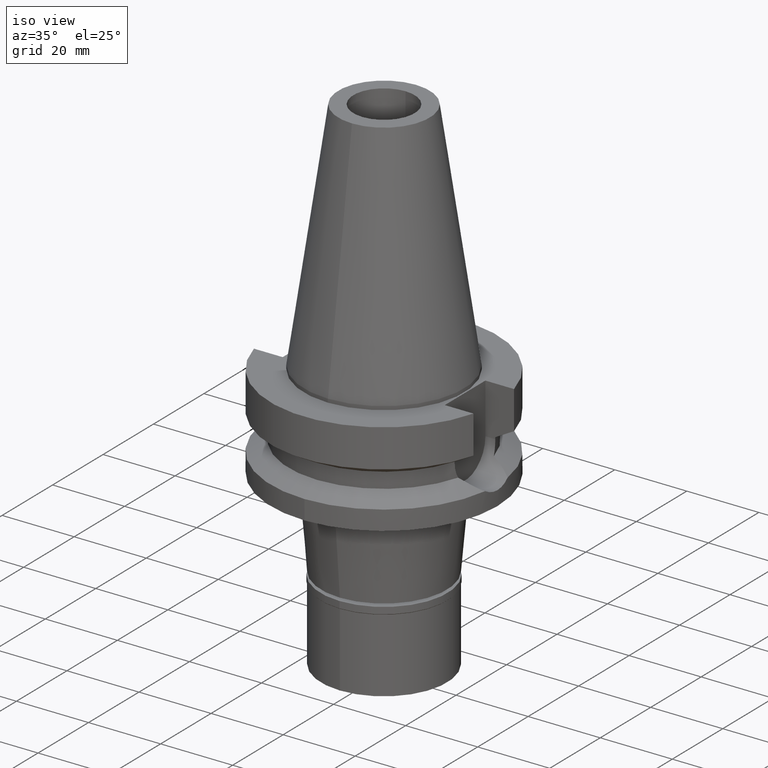
[diagram: clean part render]
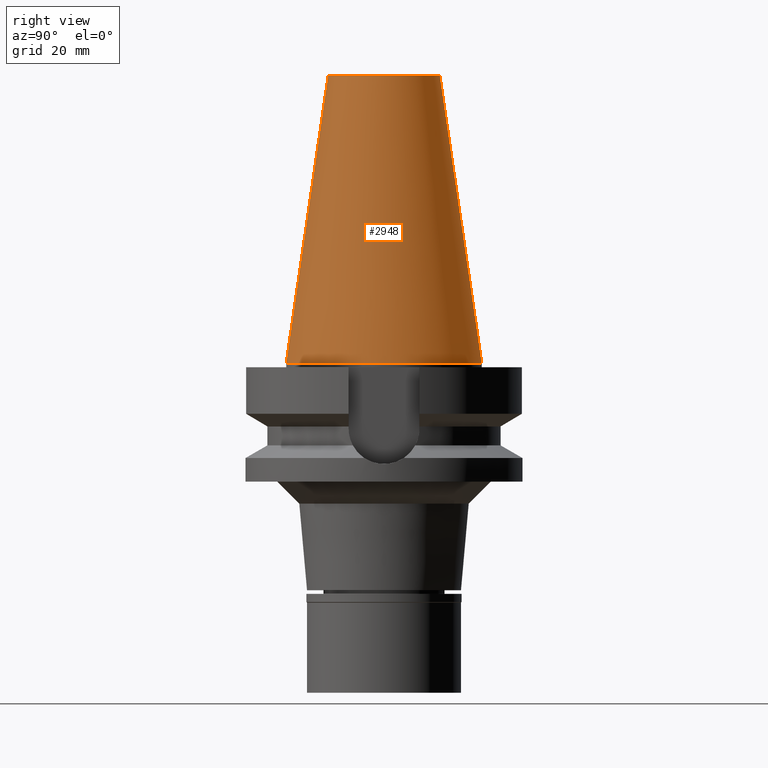
[diagram: tour spotlight — one face highlighted and labeled with its STEP entity id]
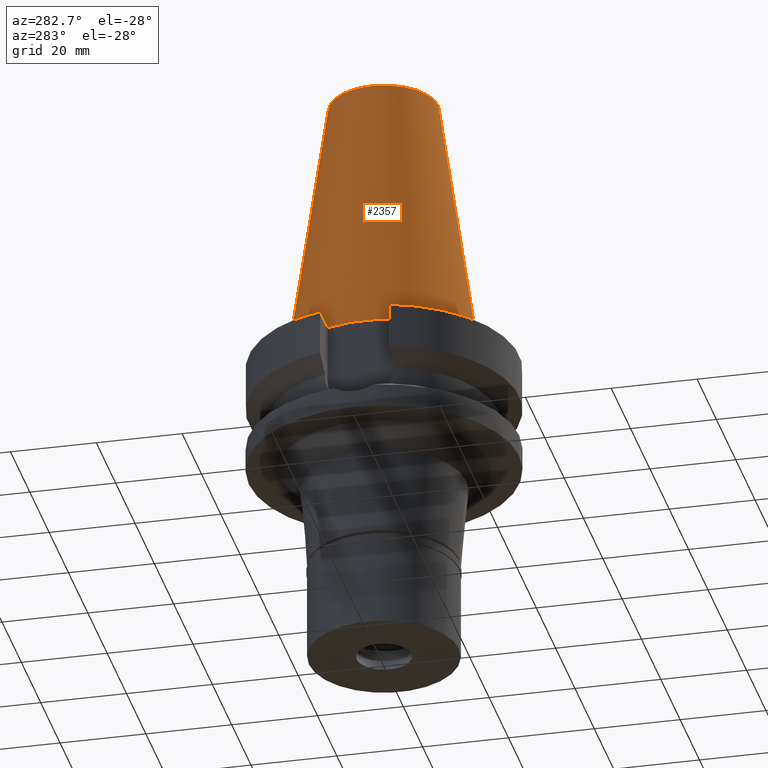
[diagram: tour spotlight — one face highlighted and labeled with its STEP entity id]
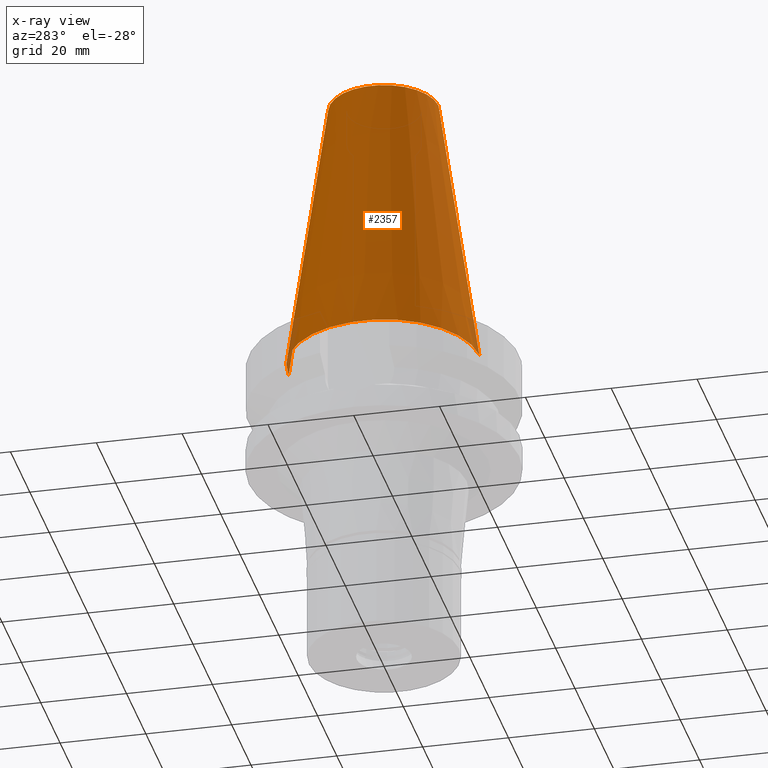
[diagram: x-ray of the same camera — body ghosted, this tour face saturated]
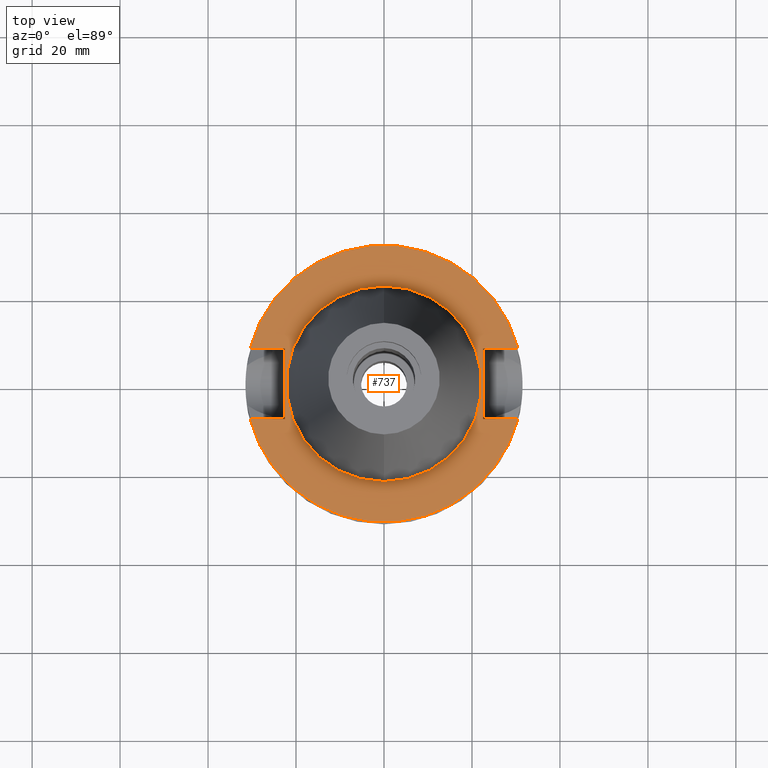
[diagram: tour spotlight — one face highlighted and labeled with its STEP entity id]
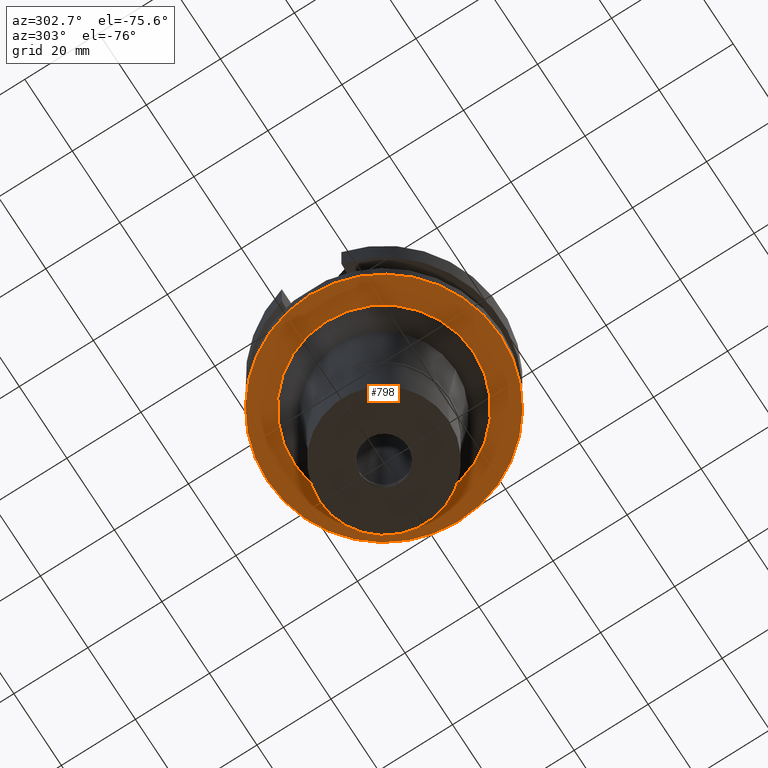
[diagram: tour spotlight — one face highlighted and labeled with its STEP entity id]
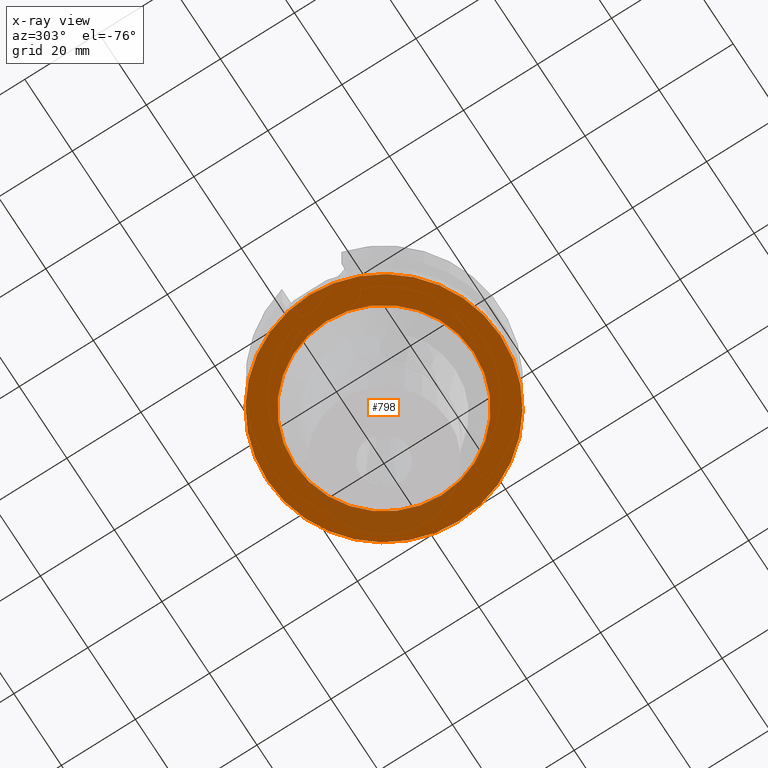
[diagram: x-ray of the same camera — body ghosted, this tour face saturated]
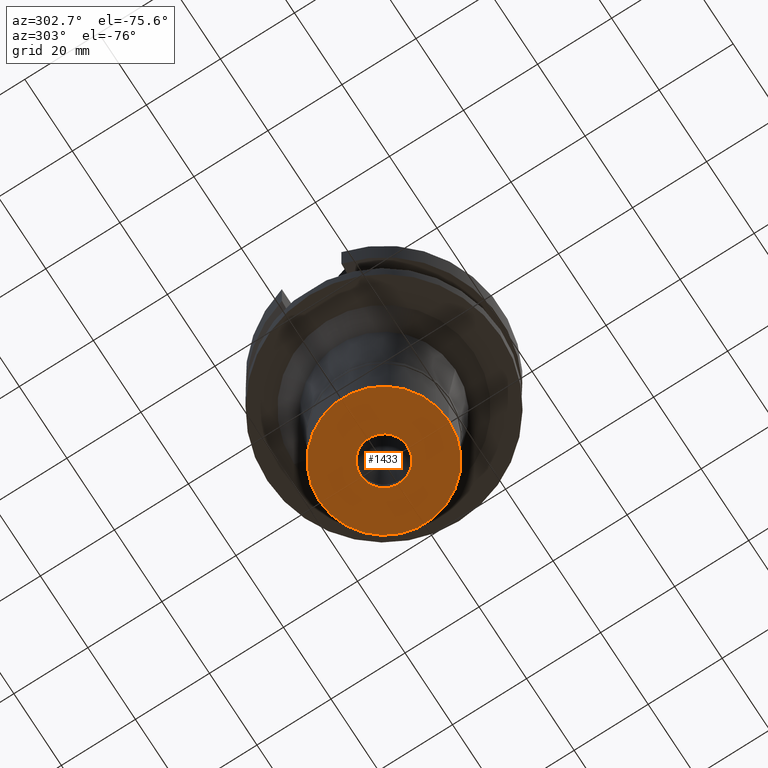
[diagram: tour spotlight — one face highlighted and labeled with its STEP entity id]
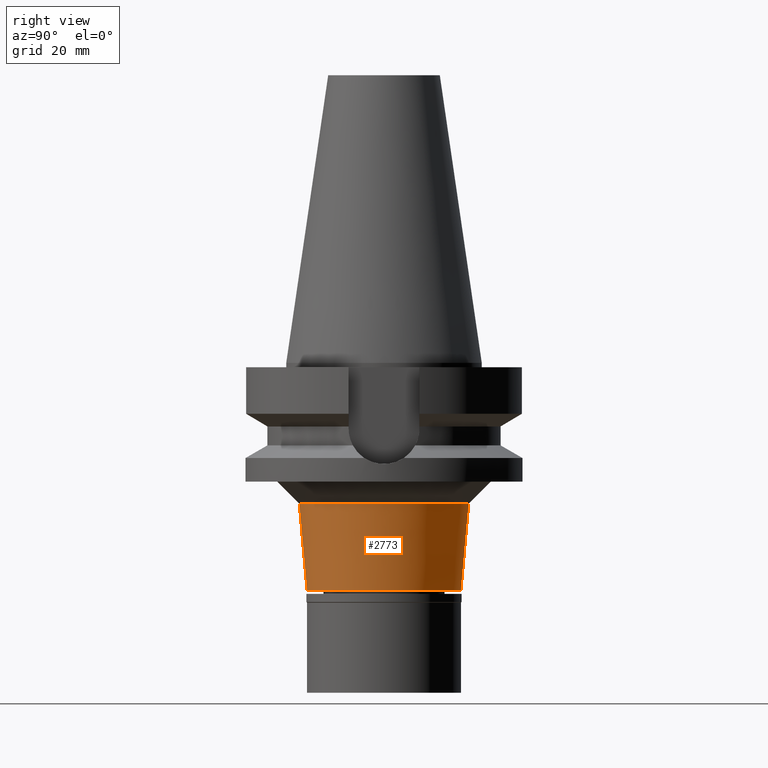
[diagram: tour spotlight — one face highlighted and labeled with its STEP entity id]
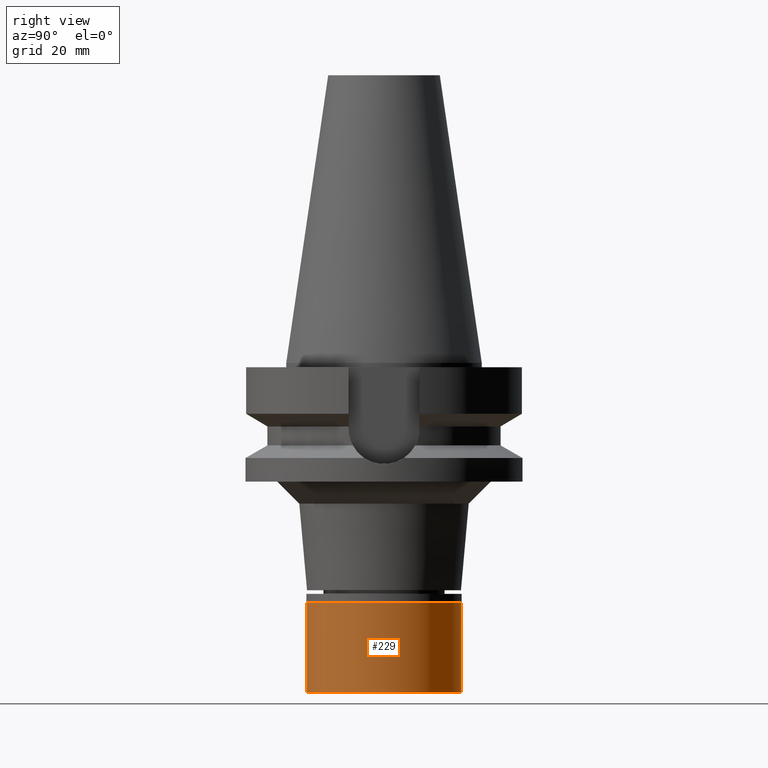
[diagram: tour spotlight — one face highlighted and labeled with its STEP entity id]
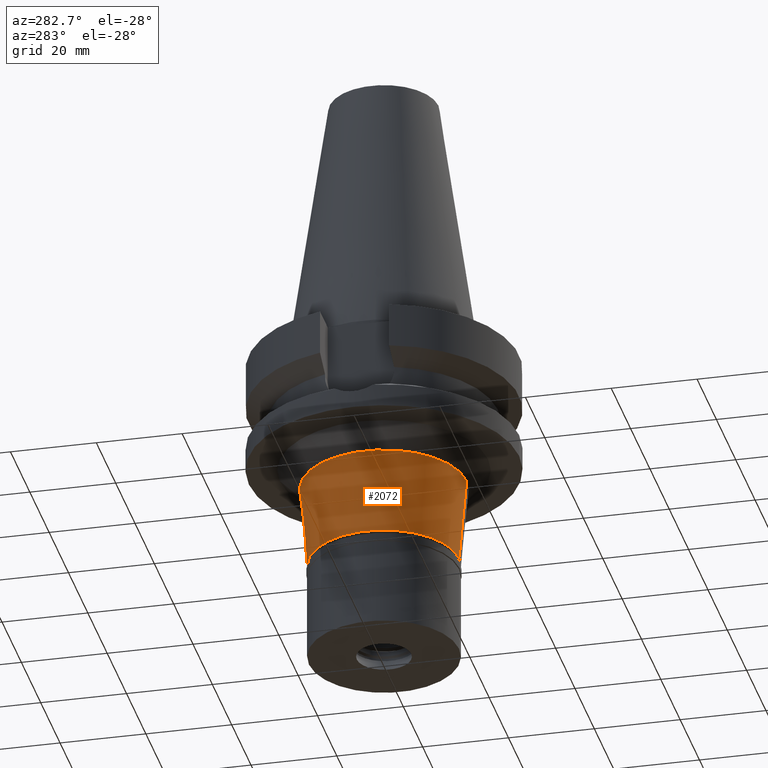
[diagram: tour spotlight — one face highlighted and labeled with its STEP entity id]
A machine part: a face-by-face anatomy tour. The part has 78 B-rep faces; the first image is the clean iso view, then the 8 largest visible faces are spotlighted one at a time (largest first), each with its STEP entity span.

Face 1 — right view, entity #2948. In plain terms, the highlighted conical surface has half-angle 8.297 deg.
Definition (entity closure, byte-faithful):
#158 = ORIENTED_EDGE ( 'NONE', *, *, #2037, .T. ) ;
#169 = DIRECTION ( 'NONE',  ( 0.0000000000000000000, 1.000000000000000000, 0.0000000000000000000 ) ) ;
#252 = DIRECTION ( 'NONE',  ( 0.0000000000000000000, 1.000000000000000000, 0.0000000000000000000 ) ) ;
#267 = CARTESIAN_POINT ( 'NONE',  ( 0.0000000000000000000, -12.68766899429999917, 65.40000000000000568 ) ) ;
#365 = ORIENTED_EDGE ( 'NONE', *, *, #1145, .F. ) ;
#437 = AXIS2_PLACEMENT_3D ( 'NONE', #1416, #1450, #1923 ) ;
#460 = ORIENTED_EDGE ( 'NONE', *, *, #1868, .T. ) ;
#486 = AXIS2_PLACEMENT_3D ( 'NONE', #2359, #2520, #252 ) ;
#538 = EDGE_CURVE ( 'NONE', #1967, #1938, #1805, .T. ) ;
#724 = EDGE_LOOP ( 'NONE', ( #460, #158, #1735, #365 ) ) ;
#744 = FACE_OUTER_BOUND ( 'NONE', #724, .T. ) ;
#999 = CARTESIAN_POINT ( 'NONE',  ( 0.0000000000000000000, -12.68766899429999917, 65.40000000000000568 ) ) ;
#1145 = EDGE_CURVE ( 'NONE', #2030, #1967, #1499, .T. ) ;
#1278 = VECTOR ( 'NONE', #2618, 1000.000000000000114 ) ;
#1343 = CARTESIAN_POINT ( 'NONE',  ( 0.0000000000000000000, 1.625106302469000024E-14, 65.40000000000000568 ) ) ;
#1416 = CARTESIAN_POINT ( 'NONE',  ( 0.0000000000000000000, 1.625106302469000024E-14, 32.70000000000000284 ) ) ;
#1450 = DIRECTION ( 'NONE',  ( 0.0000000000000000000, 0.0000000000000000000, -1.000000000000000000 ) ) ;
#1470 = CARTESIAN_POINT ( 'NONE',  ( 0.0000000000000000000, 12.68766899429999917, 65.40000000000000568 ) ) ;
#1499 = LINE ( 'NONE', #1470, #1278 ) ;
#1623 = CARTESIAN_POINT ( 'NONE',  ( 0.0000000000000000000, -22.22500000000000142, 5.684341886080998387E-14 ) ) ;
#1650 = CARTESIAN_POINT ( 'NONE',  ( 0.0000000000000000000, 22.22500000000000142, 5.684341886080998387E-14 ) ) ;
#1659 = VECTOR ( 'NONE', #2143, 1000.000000000000114 ) ;
#1688 = LINE ( 'NONE', #267, #1659 ) ;
#1709 = AXIS2_PLACEMENT_3D ( 'NONE', #1343, #2275, #169 ) ;
#1735 = ORIENTED_EDGE ( 'NONE', *, *, #538, .F. ) ;
#1805 = CIRCLE ( 'NONE', #486, 22.22500000000000142 ) ;
#1863 = CONICAL_SURFACE ( 'NONE', #437, 17.45633449714999941, 0.1448099680379422438 ) ;
#1868 = EDGE_CURVE ( 'NONE', #2030, #2129, #1904, .T. ) ;
#1904 = CIRCLE ( 'NONE', #1709, 12.68766899429999917 ) ;
#1923 = DIRECTION ( 'NONE',  ( 0.0000000000000000000, -1.000000000000000000, 0.0000000000000000000 ) ) ;
#1938 = VERTEX_POINT ( 'NONE', #1623 ) ;
#1967 = VERTEX_POINT ( 'NONE', #1650 ) ;
#2030 = VERTEX_POINT ( 'NONE', #2611 ) ;
#2037 = EDGE_CURVE ( 'NONE', #2129, #1938, #1688, .T. ) ;
#2129 = VERTEX_POINT ( 'NONE', #999 ) ;
#2143 = DIRECTION ( 'NONE',  ( 0.0000000000000000000, -0.1443043893539925626, -0.9895333461855498891 ) ) ;
#2275 = DIRECTION ( 'NONE',  ( 0.0000000000000000000, 0.0000000000000000000, -1.000000000000000000 ) ) ;
#2359 = CARTESIAN_POINT ( 'NONE',  ( 0.0000000000000000000, 1.625106302469000024E-14, 2.842170943039999687E-14 ) ) ;
#2520 = DIRECTION ( 'NONE',  ( 0.0000000000000000000, 0.0000000000000000000, -1.000000000000000000 ) ) ;
#2611 = CARTESIAN_POINT ( 'NONE',  ( 0.0000000000000000000, 12.68766899429999917, 65.40000000000000568 ) ) ;
#2618 = DIRECTION ( 'NONE',  ( 0.0000000000000000000, 0.1443043893539925626, -0.9895333461855498891 ) ) ;
#2948 = ADVANCED_FACE ( 'NONE', ( #744 ), #1863, .T. ) ;

Face 2 — auxiliary view, entity #2357. An x-ray twin of the same camera follows (body ghosted, this face saturated) — the face is partly hidden behind the body. In plain terms, the highlighted conical surface has half-angle 8.297 deg.
Definition (entity closure, byte-faithful):
#267 = CARTESIAN_POINT ( 'NONE',  ( 0.0000000000000000000, -12.68766899429999917, 65.40000000000000568 ) ) ;
#384 = ORIENTED_EDGE ( 'NONE', *, *, #1145, .T. ) ;
#505 = EDGE_CURVE ( 'NONE', #2129, #2030, #1710, .T. ) ;
#544 = CIRCLE ( 'NONE', #2453, 22.22500000000000142 ) ;
#594 = ORIENTED_EDGE ( 'NONE', *, *, #1150, .F. ) ;
#628 = FACE_OUTER_BOUND ( 'NONE', #1793, .T. ) ;
#648 = CARTESIAN_POINT ( 'NONE',  ( 0.0000000000000000000, 1.625106302469000024E-14, 65.40000000000000568 ) ) ;
#836 = AXIS2_PLACEMENT_3D ( 'NONE', #1835, #2273, #2005 ) ;
#999 = CARTESIAN_POINT ( 'NONE',  ( 0.0000000000000000000, -12.68766899429999917, 65.40000000000000568 ) ) ;
#1145 = EDGE_CURVE ( 'NONE', #2030, #1967, #1499, .T. ) ;
#1150 = EDGE_CURVE ( 'NONE', #1938, #1967, #544, .T. ) ;
#1278 = VECTOR ( 'NONE', #2618, 1000.000000000000114 ) ;
#1420 = AXIS2_PLACEMENT_3D ( 'NONE', #648, #1584, #2505 ) ;
#1453 = CARTESIAN_POINT ( 'NONE',  ( 0.0000000000000000000, 1.625106302469000024E-14, 2.842170943039999687E-14 ) ) ;
#1470 = CARTESIAN_POINT ( 'NONE',  ( 0.0000000000000000000, 12.68766899429999917, 65.40000000000000568 ) ) ;
#1499 = LINE ( 'NONE', #1470, #1278 ) ;
#1511 = DIRECTION ( 'NONE',  ( 0.0000000000000000000, 0.0000000000000000000, -1.000000000000000000 ) ) ;
#1584 = DIRECTION ( 'NONE',  ( 0.0000000000000000000, 0.0000000000000000000, -1.000000000000000000 ) ) ;
#1623 = CARTESIAN_POINT ( 'NONE',  ( 0.0000000000000000000, -22.22500000000000142, 5.684341886080998387E-14 ) ) ;
#1650 = CARTESIAN_POINT ( 'NONE',  ( 0.0000000000000000000, 22.22500000000000142, 5.684341886080998387E-14 ) ) ;
#1659 = VECTOR ( 'NONE', #2143, 1000.000000000000114 ) ;
#1688 = LINE ( 'NONE', #267, #1659 ) ;
#1710 = CIRCLE ( 'NONE', #1420, 12.68766899429999917 ) ;
#1793 = EDGE_LOOP ( 'NONE', ( #594, #2500, #2615, #384 ) ) ;
#1835 = CARTESIAN_POINT ( 'NONE',  ( 0.0000000000000000000, 1.625106302469000024E-14, 32.70000000000000284 ) ) ;
#1910 = CONICAL_SURFACE ( 'NONE', #836, 17.45633449714999941, 0.1448099680379422438 ) ;
#1938 = VERTEX_POINT ( 'NONE', #1623 ) ;
#1967 = VERTEX_POINT ( 'NONE', #1650 ) ;
#2005 = DIRECTION ( 'NONE',  ( 0.0000000000000000000, -1.000000000000000000, 0.0000000000000000000 ) ) ;
#2030 = VERTEX_POINT ( 'NONE', #2611 ) ;
#2037 = EDGE_CURVE ( 'NONE', #2129, #1938, #1688, .T. ) ;
#2129 = VERTEX_POINT ( 'NONE', #999 ) ;
#2143 = DIRECTION ( 'NONE',  ( 0.0000000000000000000, -0.1443043893539925626, -0.9895333461855498891 ) ) ;
#2273 = DIRECTION ( 'NONE',  ( 0.0000000000000000000, 0.0000000000000000000, -1.000000000000000000 ) ) ;
#2357 = ADVANCED_FACE ( 'NONE', ( #628 ), #1910, .T. ) ;
#2453 = AXIS2_PLACEMENT_3D ( 'NONE', #1453, #1511, #2900 ) ;
#2500 = ORIENTED_EDGE ( 'NONE', *, *, #2037, .F. ) ;
#2505 = DIRECTION ( 'NONE',  ( 0.0000000000000000000, -1.000000000000000000, 0.0000000000000000000 ) ) ;
#2611 = CARTESIAN_POINT ( 'NONE',  ( 0.0000000000000000000, 12.68766899429999917, 65.40000000000000568 ) ) ;
#2615 = ORIENTED_EDGE ( 'NONE', *, *, #505, .T. ) ;
#2618 = DIRECTION ( 'NONE',  ( 0.0000000000000000000, 0.1443043893539925626, -0.9895333461855498891 ) ) ;
#2900 = DIRECTION ( 'NONE',  ( 0.0000000000000000000, -1.000000000000000000, 0.0000000000000000000 ) ) ;

Face 3 — top view, entity #737. In plain terms, the highlighted planar face has unit normal (0, 0, -1).
Definition (entity closure, byte-faithful):
#33 = DIRECTION ( 'NONE',  ( 1.000000000000000000, -3.506251283225999947E-14, 0.0000000000000000000 ) ) ;
#97 = PLANE ( 'NONE',  #1134 ) ;
#122 = DIRECTION ( 'NONE',  ( 0.0000000000000000000, -1.000000000000000000, 0.0000000000000000000 ) ) ;
#124 = DIRECTION ( 'NONE',  ( 0.0000000000000000000, -1.000000000000000000, 0.0000000000000000000 ) ) ;
#127 = CARTESIAN_POINT ( 'NONE',  ( -22.50000000000000000, 8.050000000000000711, -1.000000000000000000 ) ) ;
#139 = EDGE_CURVE ( 'NONE', #1373, #1049, #583, .T. ) ;
#149 = CIRCLE ( 'NONE', #1091, 31.50000000000000000 ) ;
#199 = ORIENTED_EDGE ( 'NONE', *, *, #1578, .T. ) ;
#214 = CARTESIAN_POINT ( 'NONE',  ( 0.0000000000000000000, -22.22500000000000142, -1.000000000000000000 ) ) ;
#221 = ORIENTED_EDGE ( 'NONE', *, *, #3023, .F. ) ;
#232 = VECTOR ( 'NONE', #2446, 1000.000000000000000 ) ;
#311 = VERTEX_POINT ( 'NONE', #1745 ) ;
#369 = ORIENTED_EDGE ( 'NONE', *, *, #2689, .F. ) ;
#389 = VECTOR ( 'NONE', #1053, 1000.000000000000000 ) ;
#405 = CARTESIAN_POINT ( 'NONE',  ( 30.45402272279000044, 8.050000000000000711, -1.000000000000000000 ) ) ;
#422 = VERTEX_POINT ( 'NONE', #1634 ) ;
#480 = VECTOR ( 'NONE', #33, 1000.000000000000000 ) ;
#551 = FACE_OUTER_BOUND ( 'NONE', #939, .T. ) ;
#574 = DIRECTION ( 'NONE',  ( 0.0000000000000000000, 0.0000000000000000000, 1.000000000000000000 ) ) ;
#583 = CIRCLE ( 'NONE', #677, 22.22500000000000142 ) ;
#596 = CARTESIAN_POINT ( 'NONE',  ( 22.50000000000000000, 8.050000000000000711, -1.000000000000000000 ) ) ;
#602 = CARTESIAN_POINT ( 'NONE',  ( -22.50000000000000000, -8.050000000000000711, -1.000000000000000000 ) ) ;
#607 = ORIENTED_EDGE ( 'NONE', *, *, #1272, .F. ) ;
#651 = CARTESIAN_POINT ( 'NONE',  ( -30.45402272279000044, -8.050000000000000711, -1.000000000000000000 ) ) ;
#677 = AXIS2_PLACEMENT_3D ( 'NONE', #2145, #1000, #1934 ) ;
#737 = ADVANCED_FACE ( 'NONE', ( #551, #2210 ), #97, .F. ) ;
#759 = CARTESIAN_POINT ( 'NONE',  ( 22.50000000000000000, -8.050000000000000711, -1.000000000000000000 ) ) ;
#768 = VERTEX_POINT ( 'NONE', #405 ) ;
#820 = DIRECTION ( 'NONE',  ( 0.0000000000000000000, -1.000000000000000000, 0.0000000000000000000 ) ) ;
#821 = CARTESIAN_POINT ( 'NONE',  ( 0.0000000000000000000, 2.107433444312999912E-14, -1.000000000000000000 ) ) ;
#870 = CARTESIAN_POINT ( 'NONE',  ( -22.50000000000000000, -8.050000000000000711, -1.000000000000000000 ) ) ;
#873 = CARTESIAN_POINT ( 'NONE',  ( 0.0000000000000000000, 2.107433444312999912E-14, -1.000000000000000000 ) ) ;
#882 = VERTEX_POINT ( 'NONE', #870 ) ;
#896 = DIRECTION ( 'NONE',  ( -1.000000000000000000, -3.550916904668000126E-14, 0.0000000000000000000 ) ) ;
#932 = VECTOR ( 'NONE', #896, 1000.000000000000000 ) ;
#939 = EDGE_LOOP ( 'NONE', ( #1725, #2232, #221, #607, #199, #1045, #1457, #2443 ) ) ;
#1000 = DIRECTION ( 'NONE',  ( 0.0000000000000000000, 0.0000000000000000000, 1.000000000000000000 ) ) ;
#1045 = ORIENTED_EDGE ( 'NONE', *, *, #2313, .F. ) ;
#1049 = VERTEX_POINT ( 'NONE', #214 ) ;
#1053 = DIRECTION ( 'NONE',  ( 0.0000000000000000000, 1.000000000000000000, 0.0000000000000000000 ) ) ;
#1091 = AXIS2_PLACEMENT_3D ( 'NONE', #873, #2036, #2027 ) ;
#1134 = AXIS2_PLACEMENT_3D ( 'NONE', #1545, #2280, #124 ) ;
#1239 = VERTEX_POINT ( 'NONE', #1927 ) ;
#1272 = EDGE_CURVE ( 'NONE', #2466, #1239, #1815, .T. ) ;
#1280 = CIRCLE ( 'NONE', #2455, 22.22500000000000142 ) ;
#1291 = LINE ( 'NONE', #602, #389 ) ;
#1330 = VERTEX_POINT ( 'NONE', #651 ) ;
#1373 = VERTEX_POINT ( 'NONE', #2739 ) ;
#1386 = ORIENTED_EDGE ( 'NONE', *, *, #139, .F. ) ;
#1398 = CARTESIAN_POINT ( 'NONE',  ( -30.45402272279000044, 8.050000000000000711, -1.000000000000000000 ) ) ;
#1404 = EDGE_CURVE ( 'NONE', #882, #1330, #2978, .T. ) ;
#1427 = AXIS2_PLACEMENT_3D ( 'NONE', #821, #2964, #122 ) ;
#1457 = ORIENTED_EDGE ( 'NONE', *, *, #2321, .F. ) ;
#1543 = DIRECTION ( 'NONE',  ( 0.0000000000000000000, -1.000000000000000000, 0.0000000000000000000 ) ) ;
#1545 = CARTESIAN_POINT ( 'NONE',  ( 0.0000000000000000000, 1.212400331155999925E-14, -1.000000000000000000 ) ) ;
#1578 = EDGE_CURVE ( 'NONE', #2466, #768, #2348, .T. ) ;
#1634 = CARTESIAN_POINT ( 'NONE',  ( 30.45402272279000044, -8.050000000000000711, -1.000000000000000000 ) ) ;
#1725 = ORIENTED_EDGE ( 'NONE', *, *, #1404, .T. ) ;
#1745 = CARTESIAN_POINT ( 'NONE',  ( -22.50000000000000000, 8.050000000000000711, -1.000000000000000000 ) ) ;
#1810 = VECTOR ( 'NONE', #820, 1000.000000000000000 ) ;
#1815 = LINE ( 'NONE', #596, #1810 ) ;
#1872 = EDGE_LOOP ( 'NONE', ( #1386, #369 ) ) ;
#1900 = LINE ( 'NONE', #759, #2058 ) ;
#1927 = CARTESIAN_POINT ( 'NONE',  ( 22.50000000000000000, -8.050000000000000711, -1.000000000000000000 ) ) ;
#1934 = DIRECTION ( 'NONE',  ( 0.0000000000000000000, 1.000000000000000000, 0.0000000000000000000 ) ) ;
#1950 = CARTESIAN_POINT ( 'NONE',  ( 22.50000000000000000, 8.050000000000000711, -1.000000000000000000 ) ) ;
#2027 = DIRECTION ( 'NONE',  ( 0.0000000000000000000, 1.000000000000000000, 0.0000000000000000000 ) ) ;
#2036 = DIRECTION ( 'NONE',  ( 0.0000000000000000000, 0.0000000000000000000, -1.000000000000000000 ) ) ;
#2058 = VECTOR ( 'NONE', #2117, 1000.000000000000000 ) ;
#2117 = DIRECTION ( 'NONE',  ( 1.000000000000000000, 3.573249715389999860E-14, 0.0000000000000000000 ) ) ;
#2145 = CARTESIAN_POINT ( 'NONE',  ( 0.0000000000000000000, 2.107433444312999912E-14, -1.000000000000000000 ) ) ;
#2210 = FACE_BOUND ( 'NONE', #1872, .T. ) ;
#2215 = EDGE_CURVE ( 'NONE', #882, #311, #1291, .T. ) ;
#2232 = ORIENTED_EDGE ( 'NONE', *, *, #2722, .F. ) ;
#2280 = DIRECTION ( 'NONE',  ( 0.0000000000000000000, 0.0000000000000000000, -1.000000000000000000 ) ) ;
#2313 = EDGE_CURVE ( 'NONE', #2868, #768, #149, .T. ) ;
#2321 = EDGE_CURVE ( 'NONE', #311, #2868, #2997, .T. ) ;
#2348 = LINE ( 'NONE', #1950, #480 ) ;
#2443 = ORIENTED_EDGE ( 'NONE', *, *, #2215, .F. ) ;
#2446 = DIRECTION ( 'NONE',  ( -1.000000000000000000, 3.550916904668000126E-14, 0.0000000000000000000 ) ) ;
#2455 = AXIS2_PLACEMENT_3D ( 'NONE', #2469, #574, #1543 ) ;
#2466 = VERTEX_POINT ( 'NONE', #2538 ) ;
#2468 = CARTESIAN_POINT ( 'NONE',  ( -22.50000000000000000, -8.050000000000000711, -1.000000000000000000 ) ) ;
#2469 = CARTESIAN_POINT ( 'NONE',  ( 0.0000000000000000000, 2.107433444312999912E-14, -1.000000000000000000 ) ) ;
#2538 = CARTESIAN_POINT ( 'NONE',  ( 22.50000000000000000, 8.050000000000000711, -1.000000000000000000 ) ) ;
#2689 = EDGE_CURVE ( 'NONE', #1049, #1373, #1280, .T. ) ;
#2722 = EDGE_CURVE ( 'NONE', #422, #1330, #2752, .T. ) ;
#2739 = CARTESIAN_POINT ( 'NONE',  ( 0.0000000000000000000, 22.22500000000000142, -1.000000000000000000 ) ) ;
#2752 = CIRCLE ( 'NONE', #1427, 31.50000000000000000 ) ;
#2868 = VERTEX_POINT ( 'NONE', #1398 ) ;
#2964 = DIRECTION ( 'NONE',  ( 0.0000000000000000000, 0.0000000000000000000, -1.000000000000000000 ) ) ;
#2978 = LINE ( 'NONE', #2468, #232 ) ;
#2997 = LINE ( 'NONE', #127, #932 ) ;
#3023 = EDGE_CURVE ( 'NONE', #1239, #422, #1900, .T. ) ;

Face 4 — auxiliary view, entity #798. An x-ray twin of the same camera follows (body ghosted, this face saturated) — the face is partly hidden behind the body. In plain terms, the highlighted planar face has unit normal (0, 0, -1).
Definition (entity closure, byte-faithful):
#46 = DIRECTION ( 'NONE',  ( 0.0000000000000000000, -1.000000000000000000, 0.0000000000000000000 ) ) ;
#80 = CIRCLE ( 'NONE', #1851, 24.25817816059999998 ) ;
#113 = CARTESIAN_POINT ( 'NONE',  ( 0.0000000000000000000, 0.0000000000000000000, -27.00000000000000000 ) ) ;
#121 = DIRECTION ( 'NONE',  ( 0.0000000000000000000, 0.0000000000000000000, 1.000000000000000000 ) ) ;
#136 = CARTESIAN_POINT ( 'NONE',  ( 0.0000000000000000000, 2.107433444312999912E-14, -27.00000000000000000 ) ) ;
#239 = AXIS2_PLACEMENT_3D ( 'NONE', #113, #1066, #46 ) ;
#329 = DIRECTION ( 'NONE',  ( 0.0000000000000000000, 1.000000000000000000, 0.0000000000000000000 ) ) ;
#340 = EDGE_LOOP ( 'NONE', ( #2171, #2758 ) ) ;
#349 = CARTESIAN_POINT ( 'NONE',  ( 0.0000000000000000000, -31.50000000000000000, -27.00000000000000000 ) ) ;
#392 = DIRECTION ( 'NONE',  ( 0.0000000000000000000, -1.000000000000000000, 0.0000000000000000000 ) ) ;
#488 = CIRCLE ( 'NONE', #2212, 31.50000000000000000 ) ;
#536 = CARTESIAN_POINT ( 'NONE',  ( 0.0000000000000000000, 31.50000000000000000, -27.00000000000000000 ) ) ;
#615 = VERTEX_POINT ( 'NONE', #2226 ) ;
#634 = EDGE_CURVE ( 'NONE', #615, #1468, #2297, .T. ) ;
#695 = DIRECTION ( 'NONE',  ( 0.0000000000000000000, 0.0000000000000000000, -1.000000000000000000 ) ) ;
#798 = ADVANCED_FACE ( 'NONE', ( #1110, #2764 ), #1755, .T. ) ;
#953 = CARTESIAN_POINT ( 'NONE',  ( 0.0000000000000000000, 24.25817816059999998, -27.00000000000000000 ) ) ;
#1066 = DIRECTION ( 'NONE',  ( 0.0000000000000000000, 0.0000000000000000000, -1.000000000000000000 ) ) ;
#1086 = DIRECTION ( 'NONE',  ( 0.0000000000000000000, 0.0000000000000000000, 1.000000000000000000 ) ) ;
#1093 = DIRECTION ( 'NONE',  ( 0.0000000000000000000, -1.000000000000000000, 0.0000000000000000000 ) ) ;
#1104 = CARTESIAN_POINT ( 'NONE',  ( 0.0000000000000000000, 2.107433444312999912E-14, -27.00000000000000000 ) ) ;
#1110 = FACE_OUTER_BOUND ( 'NONE', #340, .T. ) ;
#1181 = AXIS2_PLACEMENT_3D ( 'NONE', #2294, #2240, #392 ) ;
#1241 = ORIENTED_EDGE ( 'NONE', *, *, #1540, .F. ) ;
#1311 = EDGE_CURVE ( 'NONE', #1854, #2201, #488, .T. ) ;
#1468 = VERTEX_POINT ( 'NONE', #953 ) ;
#1540 = EDGE_CURVE ( 'NONE', #1468, #615, #80, .T. ) ;
#1743 = EDGE_CURVE ( 'NONE', #2201, #1854, #2259, .T. ) ;
#1755 = PLANE ( 'NONE',  #1181 ) ;
#1851 = AXIS2_PLACEMENT_3D ( 'NONE', #2800, #695, #2561 ) ;
#1854 = VERTEX_POINT ( 'NONE', #349 ) ;
#2171 = ORIENTED_EDGE ( 'NONE', *, *, #1743, .F. ) ;
#2181 = ORIENTED_EDGE ( 'NONE', *, *, #634, .F. ) ;
#2201 = VERTEX_POINT ( 'NONE', #536 ) ;
#2212 = AXIS2_PLACEMENT_3D ( 'NONE', #136, #121, #1093 ) ;
#2226 = CARTESIAN_POINT ( 'NONE',  ( 0.0000000000000000000, -24.25817816059999998, -27.00000000000000000 ) ) ;
#2240 = DIRECTION ( 'NONE',  ( 0.0000000000000000000, 0.0000000000000000000, -1.000000000000000000 ) ) ;
#2259 = CIRCLE ( 'NONE', #2945, 31.50000000000000000 ) ;
#2294 = CARTESIAN_POINT ( 'NONE',  ( 0.0000000000000000000, 0.0000000000000000000, -27.00000000000000000 ) ) ;
#2297 = CIRCLE ( 'NONE', #239, 24.25817816059999998 ) ;
#2304 = EDGE_LOOP ( 'NONE', ( #1241, #2181 ) ) ;
#2561 = DIRECTION ( 'NONE',  ( 0.0000000000000000000, 1.000000000000000000, 0.0000000000000000000 ) ) ;
#2758 = ORIENTED_EDGE ( 'NONE', *, *, #1311, .F. ) ;
#2764 = FACE_BOUND ( 'NONE', #2304, .T. ) ;
#2800 = CARTESIAN_POINT ( 'NONE',  ( 0.0000000000000000000, 0.0000000000000000000, -27.00000000000000000 ) ) ;
#2945 = AXIS2_PLACEMENT_3D ( 'NONE', #1104, #1086, #329 ) ;

Face 5 — auxiliary view, entity #1433. In plain terms, the highlighted planar face has unit normal (0, 0, -1).
Definition (entity closure, byte-faithful):
#59 = DIRECTION ( 'NONE',  ( 0.0000000000000000000, 0.0000000000000000000, -1.000000000000000000 ) ) ;
#323 = CARTESIAN_POINT ( 'NONE',  ( 0.0000000000000000000, 0.0000000000000000000, -22.50000000000000000 ) ) ;
#331 = AXIS2_PLACEMENT_3D ( 'NONE', #2643, #1675, #1001 ) ;
#337 = FACE_OUTER_BOUND ( 'NONE', #2160, .T. ) ;
#537 = CIRCLE ( 'NONE', #331, 17.50000000000000000 ) ;
#542 = ORIENTED_EDGE ( 'NONE', *, *, #1638, .F. ) ;
#707 = DIRECTION ( 'NONE',  ( 0.0000000000000000000, 0.0000000000000000000, 1.000000000000000000 ) ) ;
#725 = EDGE_CURVE ( 'NONE', #2624, #2746, #2449, .T. ) ;
#752 = CARTESIAN_POINT ( 'NONE',  ( 0.0000000000000000000, 17.50000000000000000, -22.50000000000000000 ) ) ;
#924 = VERTEX_POINT ( 'NONE', #1563 ) ;
#1001 = DIRECTION ( 'NONE',  ( 0.0000000000000000000, -1.000000000000000000, 0.0000000000000000000 ) ) ;
#1041 = ORIENTED_EDGE ( 'NONE', *, *, #2576, .F. ) ;
#1074 = DIRECTION ( 'NONE',  ( 0.0000000000000000000, 0.0000000000000000000, -1.000000000000000000 ) ) ;
#1089 = EDGE_LOOP ( 'NONE', ( #1041, #2059 ) ) ;
#1122 = PLANE ( 'NONE',  #2497 ) ;
#1135 = CIRCLE ( 'NONE', #2008, 6.349999999998999556 ) ;
#1148 = CARTESIAN_POINT ( 'NONE',  ( 0.0000000000000000000, 6.349999999998999556, -22.50000000000000000 ) ) ;
#1232 = ORIENTED_EDGE ( 'NONE', *, *, #2968, .F. ) ;
#1286 = CARTESIAN_POINT ( 'NONE',  ( 0.0000000000000000000, 0.0000000000000000000, -22.50000000000000000 ) ) ;
#1287 = CARTESIAN_POINT ( 'NONE',  ( 0.0000000000000000000, 0.0000000000000000000, -22.50000000000000000 ) ) ;
#1433 = ADVANCED_FACE ( 'NONE', ( #337, #1796 ), #1122, .T. ) ;
#1563 = CARTESIAN_POINT ( 'NONE',  ( 0.0000000000000000000, -17.50000000000000000, -22.50000000000000000 ) ) ;
#1638 = EDGE_CURVE ( 'NONE', #924, #2484, #537, .T. ) ;
#1641 = DIRECTION ( 'NONE',  ( 0.0000000000000000000, 1.000000000000000000, 0.0000000000000000000 ) ) ;
#1669 = CIRCLE ( 'NONE', #2547, 17.50000000000000000 ) ;
#1675 = DIRECTION ( 'NONE',  ( 0.0000000000000000000, 0.0000000000000000000, 1.000000000000000000 ) ) ;
#1796 = FACE_BOUND ( 'NONE', #1089, .T. ) ;
#1858 = AXIS2_PLACEMENT_3D ( 'NONE', #323, #59, #2889 ) ;
#2008 = AXIS2_PLACEMENT_3D ( 'NONE', #1287, #1074, #2682 ) ;
#2043 = DIRECTION ( 'NONE',  ( 0.0000000000000000000, 0.0000000000000000000, -1.000000000000000000 ) ) ;
#2059 = ORIENTED_EDGE ( 'NONE', *, *, #725, .F. ) ;
#2160 = EDGE_LOOP ( 'NONE', ( #1232, #542 ) ) ;
#2449 = CIRCLE ( 'NONE', #1858, 6.349999999998999556 ) ;
#2484 = VERTEX_POINT ( 'NONE', #752 ) ;
#2497 = AXIS2_PLACEMENT_3D ( 'NONE', #1286, #2043, #2990 ) ;
#2547 = AXIS2_PLACEMENT_3D ( 'NONE', #2597, #707, #1641 ) ;
#2576 = EDGE_CURVE ( 'NONE', #2746, #2624, #1135, .T. ) ;
#2597 = CARTESIAN_POINT ( 'NONE',  ( 0.0000000000000000000, 0.0000000000000000000, -22.50000000000000000 ) ) ;
#2622 = CARTESIAN_POINT ( 'NONE',  ( 0.0000000000000000000, -6.349999999998999556, -22.50000000000000000 ) ) ;
#2624 = VERTEX_POINT ( 'NONE', #2622 ) ;
#2643 = CARTESIAN_POINT ( 'NONE',  ( 0.0000000000000000000, 0.0000000000000000000, -22.50000000000000000 ) ) ;
#2682 = DIRECTION ( 'NONE',  ( 0.0000000000000000000, 1.000000000000000000, 0.0000000000000000000 ) ) ;
#2746 = VERTEX_POINT ( 'NONE', #1148 ) ;
#2889 = DIRECTION ( 'NONE',  ( 0.0000000000000000000, -1.000000000000000000, 0.0000000000000000000 ) ) ;
#2968 = EDGE_CURVE ( 'NONE', #2484, #924, #1669, .T. ) ;
#2990 = DIRECTION ( 'NONE',  ( 0.0000000000000000000, -1.000000000000000000, 0.0000000000000000000 ) ) ;

Face 6 — right view, entity #2773. In plain terms, the highlighted conical surface has half-angle 5.1 deg.
Definition (entity closure, byte-faithful):
#75 = EDGE_CURVE ( 'NONE', #2326, #284, #2664, .T. ) ;
#150 = CIRCLE ( 'NONE', #2656, 19.25817816059999998 ) ;
#172 = FACE_OUTER_BOUND ( 'NONE', #1312, .T. ) ;
#284 = VERTEX_POINT ( 'NONE', #2709 ) ;
#478 = VECTOR ( 'NONE', #1920, 1000.000000000000227 ) ;
#564 = LINE ( 'NONE', #1245, #736 ) ;
#587 = CARTESIAN_POINT ( 'NONE',  ( 0.0000000000000000000, 17.50000000000000000, -51.70000000000000284 ) ) ;
#598 = CONICAL_SURFACE ( 'NONE', #2213, 18.37908908030000177, 0.08901179185169383334 ) ;
#704 = EDGE_CURVE ( 'NONE', #2183, #1749, #564, .T. ) ;
#736 = VECTOR ( 'NONE', #2918, 1000.000000000000227 ) ;
#801 = CARTESIAN_POINT ( 'NONE',  ( 0.0000000000000000000, 19.25817816059999998, -32.00000000000000000 ) ) ;
#809 = CARTESIAN_POINT ( 'NONE',  ( 0.0000000000000000000, 0.0000000000000000000, -32.00000000000000000 ) ) ;
#887 = CIRCLE ( 'NONE', #1614, 17.50000000000000000 ) ;
#962 = DIRECTION ( 'NONE',  ( 0.0000000000000000000, -1.000000000000000000, 0.0000000000000000000 ) ) ;
#1064 = EDGE_CURVE ( 'NONE', #2326, #2183, #150, .T. ) ;
#1243 = DIRECTION ( 'NONE',  ( 0.0000000000000000000, 0.0000000000000000000, 1.000000000000000000 ) ) ;
#1245 = CARTESIAN_POINT ( 'NONE',  ( 0.0000000000000000000, 19.25817816059999998, -32.00000000000000000 ) ) ;
#1253 = ORIENTED_EDGE ( 'NONE', *, *, #1064, .F. ) ;
#1312 = EDGE_LOOP ( 'NONE', ( #1253, #2810, #2476, #2939 ) ) ;
#1431 = CARTESIAN_POINT ( 'NONE',  ( 0.0000000000000000000, 0.0000000000000000000, -51.70000000000000284 ) ) ;
#1614 = AXIS2_PLACEMENT_3D ( 'NONE', #1431, #2360, #962 ) ;
#1749 = VERTEX_POINT ( 'NONE', #587 ) ;
#1839 = CARTESIAN_POINT ( 'NONE',  ( 0.0000000000000000000, 0.0000000000000000000, -41.85000000000000142 ) ) ;
#1908 = DIRECTION ( 'NONE',  ( 0.0000000000000000000, -1.000000000000000000, 0.0000000000000000000 ) ) ;
#1920 = DIRECTION ( 'NONE',  ( 0.0000000000000000000, 0.08889429686637782824, -0.9960410654107751949 ) ) ;
#2179 = CARTESIAN_POINT ( 'NONE',  ( 0.0000000000000000000, -19.25817816059999998, -32.00000000000000000 ) ) ;
#2183 = VERTEX_POINT ( 'NONE', #801 ) ;
#2213 = AXIS2_PLACEMENT_3D ( 'NONE', #1839, #2511, #2761 ) ;
#2326 = VERTEX_POINT ( 'NONE', #2765 ) ;
#2360 = DIRECTION ( 'NONE',  ( 0.0000000000000000000, 0.0000000000000000000, 1.000000000000000000 ) ) ;
#2476 = ORIENTED_EDGE ( 'NONE', *, *, #2490, .T. ) ;
#2490 = EDGE_CURVE ( 'NONE', #284, #1749, #887, .T. ) ;
#2511 = DIRECTION ( 'NONE',  ( 0.0000000000000000000, 0.0000000000000000000, 1.000000000000000000 ) ) ;
#2656 = AXIS2_PLACEMENT_3D ( 'NONE', #809, #1243, #1908 ) ;
#2664 = LINE ( 'NONE', #2179, #478 ) ;
#2709 = CARTESIAN_POINT ( 'NONE',  ( 0.0000000000000000000, -17.50000000000000000, -51.70000000000000284 ) ) ;
#2761 = DIRECTION ( 'NONE',  ( 0.0000000000000000000, 1.000000000000000000, 0.0000000000000000000 ) ) ;
#2765 = CARTESIAN_POINT ( 'NONE',  ( 0.0000000000000000000, -19.25817816059999998, -32.00000000000000000 ) ) ;
#2773 = ADVANCED_FACE ( 'NONE', ( #172 ), #598, .T. ) ;
#2810 = ORIENTED_EDGE ( 'NONE', *, *, #75, .T. ) ;
#2918 = DIRECTION ( 'NONE',  ( 0.0000000000000000000, -0.08889429686637782824, -0.9960410654107751949 ) ) ;
#2939 = ORIENTED_EDGE ( 'NONE', *, *, #704, .F. ) ;

Face 7 — right view, entity #229. In plain terms, the highlighted cylindrical surface (partial cylindrical patch) has radius 17.5 mm, axis along (0, 0, -1).
Definition (entity closure, byte-faithful):
#83 = DIRECTION ( 'NONE',  ( 0.0000000000000000000, 0.0000000000000000000, -1.000000000000000000 ) ) ;
#140 = ORIENTED_EDGE ( 'NONE', *, *, #1606, .F. ) ;
#229 = ADVANCED_FACE ( 'NONE', ( #830 ), #1731, .T. ) ;
#246 = CARTESIAN_POINT ( 'NONE',  ( 0.0000000000000000000, -17.50000000000000000, -2.000000000000000000 ) ) ;
#331 = AXIS2_PLACEMENT_3D ( 'NONE', #2643, #1675, #1001 ) ;
#403 = ORIENTED_EDGE ( 'NONE', *, *, #921, .T. ) ;
#537 = CIRCLE ( 'NONE', #331, 17.50000000000000000 ) ;
#625 = DIRECTION ( 'NONE',  ( 0.0000000000000000000, 1.000000000000000000, 0.0000000000000000000 ) ) ;
#643 = CARTESIAN_POINT ( 'NONE',  ( 0.0000000000000000000, 0.0000000000000000000, -2.000000000000000000 ) ) ;
#731 = EDGE_CURVE ( 'NONE', #1485, #924, #1502, .T. ) ;
#752 = CARTESIAN_POINT ( 'NONE',  ( 0.0000000000000000000, 17.50000000000000000, -22.50000000000000000 ) ) ;
#757 = LINE ( 'NONE', #2627, #1611 ) ;
#781 = CARTESIAN_POINT ( 'NONE',  ( 0.0000000000000000000, -17.50000000000000000, -2.000000000000000000 ) ) ;
#830 = FACE_OUTER_BOUND ( 'NONE', #1704, .T. ) ;
#863 = DIRECTION ( 'NONE',  ( 0.0000000000000000000, 0.0000000000000000000, -1.000000000000000000 ) ) ;
#921 = EDGE_CURVE ( 'NONE', #1327, #1485, #2009, .T. ) ;
#924 = VERTEX_POINT ( 'NONE', #1563 ) ;
#1001 = DIRECTION ( 'NONE',  ( 0.0000000000000000000, -1.000000000000000000, 0.0000000000000000000 ) ) ;
#1261 = DIRECTION ( 'NONE',  ( 0.0000000000000000000, -1.000000000000000000, 0.0000000000000000000 ) ) ;
#1326 = VECTOR ( 'NONE', #2659, 1000.000000000000000 ) ;
#1327 = VERTEX_POINT ( 'NONE', #2223 ) ;
#1485 = VERTEX_POINT ( 'NONE', #246 ) ;
#1502 = LINE ( 'NONE', #781, #1326 ) ;
#1563 = CARTESIAN_POINT ( 'NONE',  ( 0.0000000000000000000, -17.50000000000000000, -22.50000000000000000 ) ) ;
#1606 = EDGE_CURVE ( 'NONE', #1327, #2484, #757, .T. ) ;
#1611 = VECTOR ( 'NONE', #83, 1000.000000000000000 ) ;
#1638 = EDGE_CURVE ( 'NONE', #924, #2484, #537, .T. ) ;
#1675 = DIRECTION ( 'NONE',  ( 0.0000000000000000000, 0.0000000000000000000, 1.000000000000000000 ) ) ;
#1704 = EDGE_LOOP ( 'NONE', ( #403, #2477, #1767, #140 ) ) ;
#1731 = CYLINDRICAL_SURFACE ( 'NONE', #2589, 17.50000000000000000 ) ;
#1767 = ORIENTED_EDGE ( 'NONE', *, *, #1638, .T. ) ;
#1912 = AXIS2_PLACEMENT_3D ( 'NONE', #643, #2729, #625 ) ;
#2009 = CIRCLE ( 'NONE', #1912, 17.50000000000000000 ) ;
#2223 = CARTESIAN_POINT ( 'NONE',  ( 0.0000000000000000000, 17.50000000000000000, -2.000000000000000000 ) ) ;
#2477 = ORIENTED_EDGE ( 'NONE', *, *, #731, .T. ) ;
#2484 = VERTEX_POINT ( 'NONE', #752 ) ;
#2589 = AXIS2_PLACEMENT_3D ( 'NONE', #2723, #863, #1261 ) ;
#2627 = CARTESIAN_POINT ( 'NONE',  ( 0.0000000000000000000, 17.50000000000000000, -2.000000000000000000 ) ) ;
#2643 = CARTESIAN_POINT ( 'NONE',  ( 0.0000000000000000000, 0.0000000000000000000, -22.50000000000000000 ) ) ;
#2659 = DIRECTION ( 'NONE',  ( 0.0000000000000000000, 0.0000000000000000000, -1.000000000000000000 ) ) ;
#2723 = CARTESIAN_POINT ( 'NONE',  ( 0.0000000000000000000, 0.0000000000000000000, 0.0000000000000000000 ) ) ;
#2729 = DIRECTION ( 'NONE',  ( 0.0000000000000000000, 0.0000000000000000000, -1.000000000000000000 ) ) ;

Face 8 — auxiliary view, entity #2072. In plain terms, the highlighted conical surface has half-angle 5.1 deg.
Definition (entity closure, byte-faithful):
#38 = EDGE_CURVE ( 'NONE', #1749, #284, #2247, .T. ) ;
#75 = EDGE_CURVE ( 'NONE', #2326, #284, #2664, .T. ) ;
#284 = VERTEX_POINT ( 'NONE', #2709 ) ;
#287 = CARTESIAN_POINT ( 'NONE',  ( 0.0000000000000000000, 0.0000000000000000000, -51.70000000000000284 ) ) ;
#341 = AXIS2_PLACEMENT_3D ( 'NONE', #722, #2645, #1205 ) ;
#478 = VECTOR ( 'NONE', #1920, 1000.000000000000227 ) ;
#564 = LINE ( 'NONE', #1245, #736 ) ;
#587 = CARTESIAN_POINT ( 'NONE',  ( 0.0000000000000000000, 17.50000000000000000, -51.70000000000000284 ) ) ;
#704 = EDGE_CURVE ( 'NONE', #2183, #1749, #564, .T. ) ;
#719 = AXIS2_PLACEMENT_3D ( 'NONE', #287, #2612, #1898 ) ;
#722 = CARTESIAN_POINT ( 'NONE',  ( 0.0000000000000000000, 0.0000000000000000000, -32.00000000000000000 ) ) ;
#736 = VECTOR ( 'NONE', #2918, 1000.000000000000227 ) ;
#801 = CARTESIAN_POINT ( 'NONE',  ( 0.0000000000000000000, 19.25817816059999998, -32.00000000000000000 ) ) ;
#1095 = CIRCLE ( 'NONE', #341, 19.25817816059999998 ) ;
#1180 = AXIS2_PLACEMENT_3D ( 'NONE', #2625, #3028, #2324 ) ;
#1205 = DIRECTION ( 'NONE',  ( 0.0000000000000000000, -1.000000000000000000, 0.0000000000000000000 ) ) ;
#1245 = CARTESIAN_POINT ( 'NONE',  ( 0.0000000000000000000, 19.25817816059999998, -32.00000000000000000 ) ) ;
#1259 = ORIENTED_EDGE ( 'NONE', *, *, #3008, .T. ) ;
#1396 = ORIENTED_EDGE ( 'NONE', *, *, #38, .T. ) ;
#1480 = ORIENTED_EDGE ( 'NONE', *, *, #75, .F. ) ;
#1749 = VERTEX_POINT ( 'NONE', #587 ) ;
#1898 = DIRECTION ( 'NONE',  ( 0.0000000000000000000, 1.000000000000000000, 0.0000000000000000000 ) ) ;
#1919 = FACE_OUTER_BOUND ( 'NONE', #2206, .T. ) ;
#1920 = DIRECTION ( 'NONE',  ( 0.0000000000000000000, 0.08889429686637782824, -0.9960410654107751949 ) ) ;
#2072 = ADVANCED_FACE ( 'NONE', ( #1919 ), #2544, .T. ) ;
#2179 = CARTESIAN_POINT ( 'NONE',  ( 0.0000000000000000000, -19.25817816059999998, -32.00000000000000000 ) ) ;
#2183 = VERTEX_POINT ( 'NONE', #801 ) ;
#2206 = EDGE_LOOP ( 'NONE', ( #1396, #1480, #1259, #2429 ) ) ;
#2247 = CIRCLE ( 'NONE', #719, 17.50000000000000000 ) ;
#2324 = DIRECTION ( 'NONE',  ( 0.0000000000000000000, 1.000000000000000000, 0.0000000000000000000 ) ) ;
#2326 = VERTEX_POINT ( 'NONE', #2765 ) ;
#2429 = ORIENTED_EDGE ( 'NONE', *, *, #704, .T. ) ;
#2544 = CONICAL_SURFACE ( 'NONE', #1180, 18.37908908030000177, 0.08901179185169383334 ) ;
#2612 = DIRECTION ( 'NONE',  ( 0.0000000000000000000, 0.0000000000000000000, 1.000000000000000000 ) ) ;
#2625 = CARTESIAN_POINT ( 'NONE',  ( 0.0000000000000000000, 0.0000000000000000000, -41.85000000000000142 ) ) ;
#2645 = DIRECTION ( 'NONE',  ( 0.0000000000000000000, 0.0000000000000000000, -1.000000000000000000 ) ) ;
#2664 = LINE ( 'NONE', #2179, #478 ) ;
#2709 = CARTESIAN_POINT ( 'NONE',  ( 0.0000000000000000000, -17.50000000000000000, -51.70000000000000284 ) ) ;
#2765 = CARTESIAN_POINT ( 'NONE',  ( 0.0000000000000000000, -19.25817816059999998, -32.00000000000000000 ) ) ;
#2918 = DIRECTION ( 'NONE',  ( 0.0000000000000000000, -0.08889429686637782824, -0.9960410654107751949 ) ) ;
#3008 = EDGE_CURVE ( 'NONE', #2326, #2183, #1095, .T. ) ;
#3028 = DIRECTION ( 'NONE',  ( 0.0000000000000000000, 0.0000000000000000000, 1.000000000000000000 ) ) ;